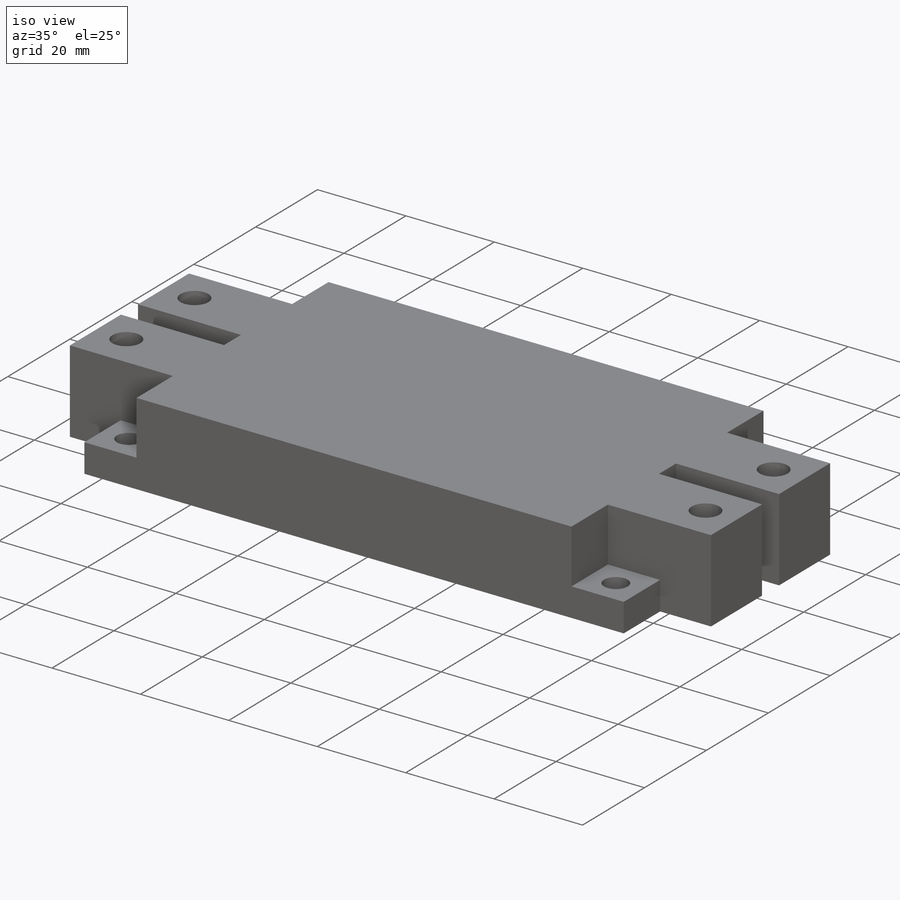
[diagram: iso view]
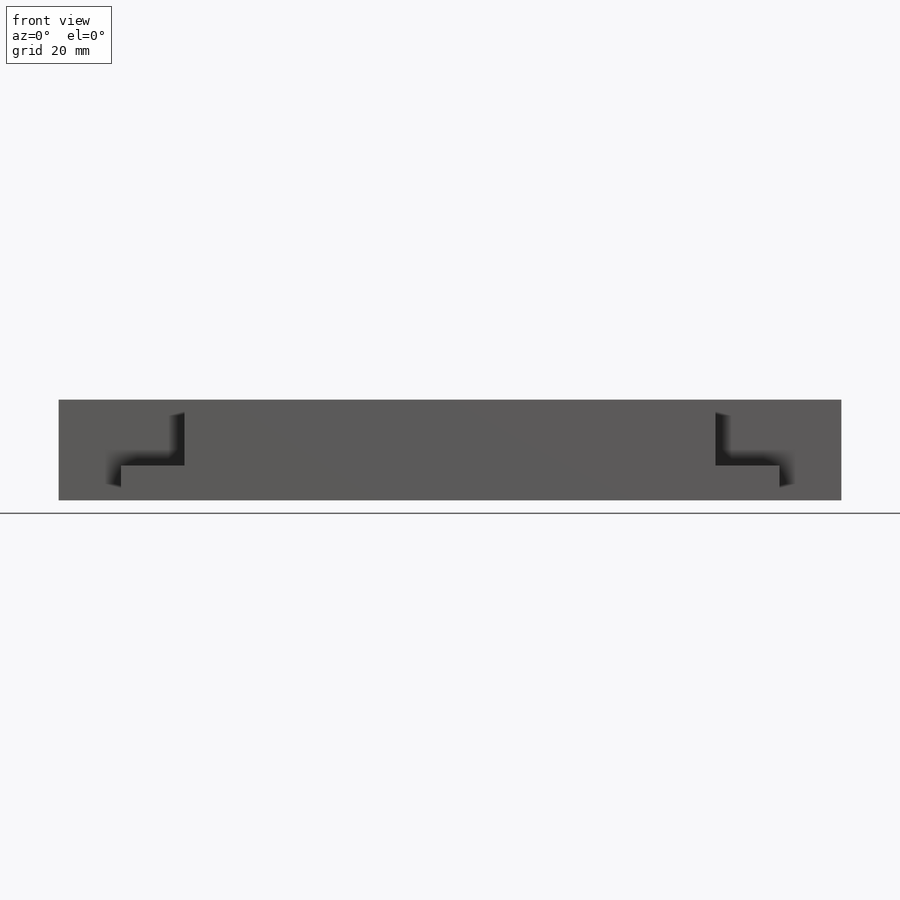
[diagram: front view]
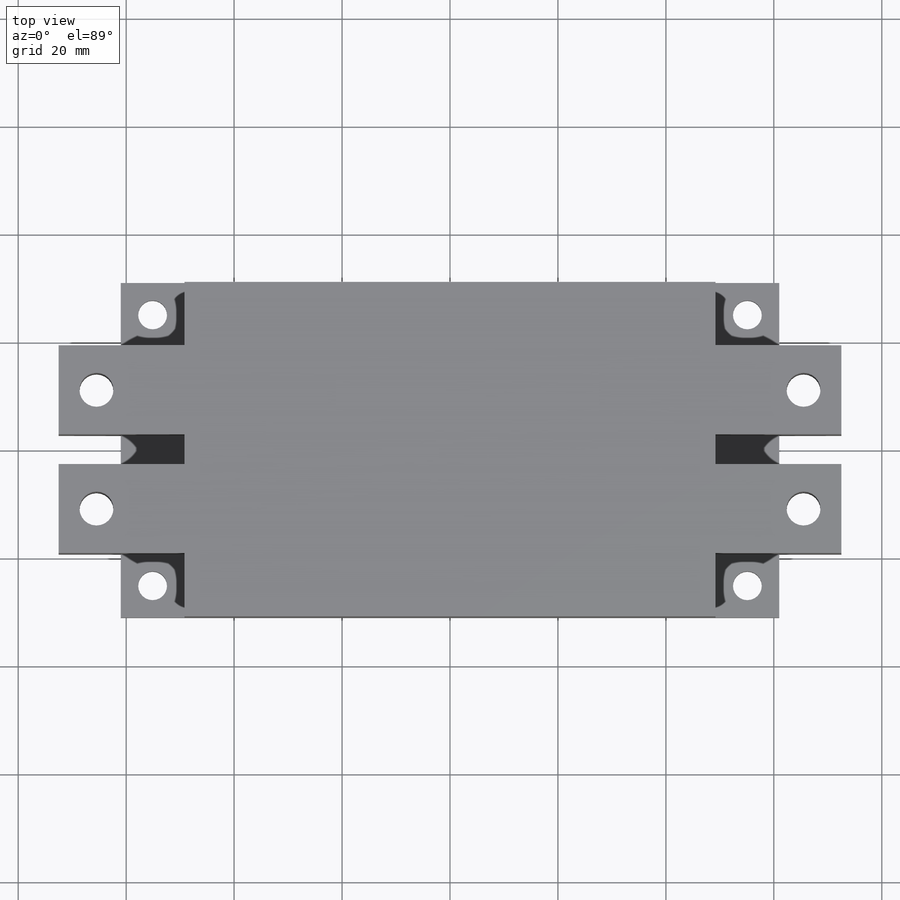
[diagram: top view]
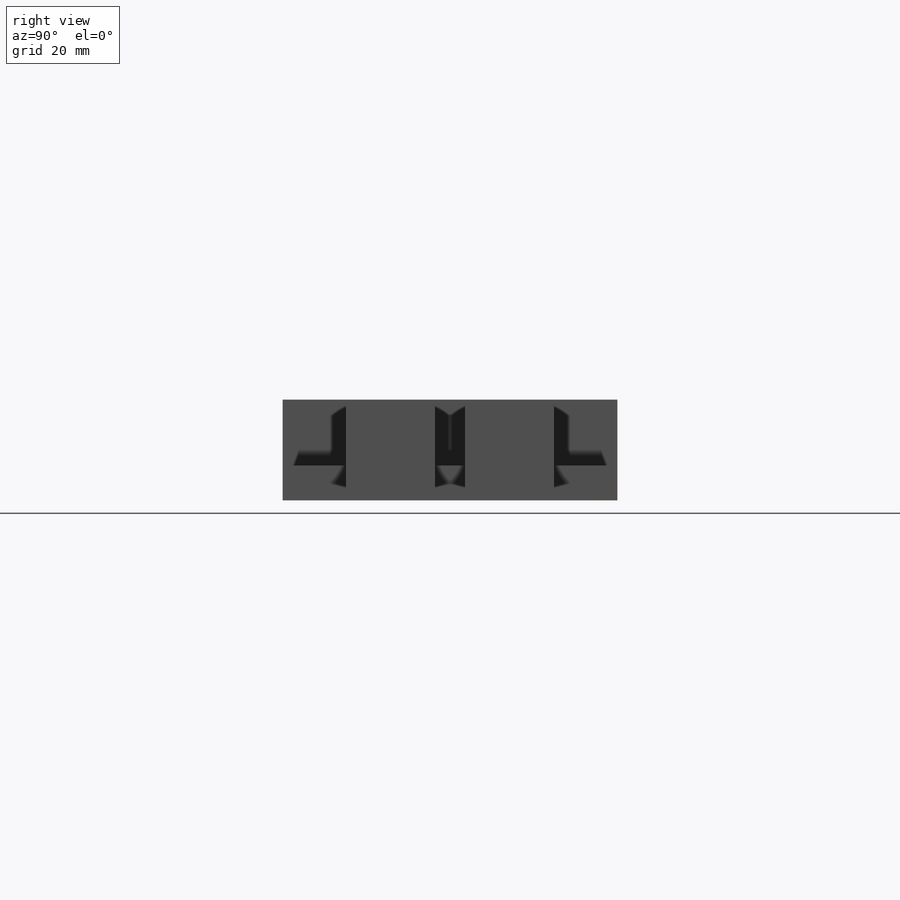
[diagram: right view]
SOLIDWORKS PART (.sldprt)
format: sldprt  version: not decoded by parser v0  size: 227,328 bytes
history: native  units: mm
features: sketch x3, extrude x3, material x1, mirror x1 (+13 scaffold rows collapsed)
feature tree (21):
  scaffold x13  (default folders/planes/origin — collapsed)
  material  "Material <not specified>"
  sketch  "Sketch1"  dims[D3=5.35mm D4=5.35mm D5=5.35mm D6=5.35mm D1=122.0mm D2=62.0mm D7=5.905mm D8=5.905mm D9=5.91mm D10=5.91mm]
  extrude  "Base"  Depth=6.45mm
  sketch  "Sketch2"  dims[c1.D1=5.91mm c1.D2=5.91mm c2.D1=5.91mm]
  extrude  "Semiconductor"  Depth=12.22mm
  sketch  "Sketch3"  dims[c1.D5=6.3mm c1.D6=6.3mm c1.D1=38.5mm c1.D2=16.5mm c1.D3=16.5mm c1.D4=11.5mm c1.D7=7.0mm c2.D4=11.5mm]
  extrude  "Tabs"  [1 undecoded]
  mirror  "Mirror"
decode coverage: 5 of 7 modeling features carry decoded parameters
note: 1 parameter value undecoded
note: suppression state not decoded; provenance and decode notes live in map.json
